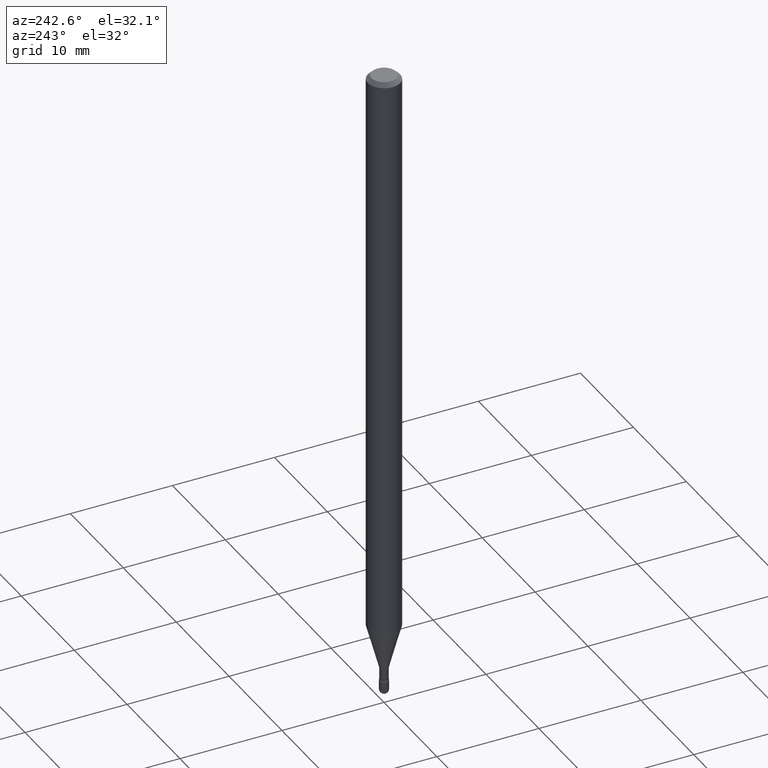
[diagram: clean part render]
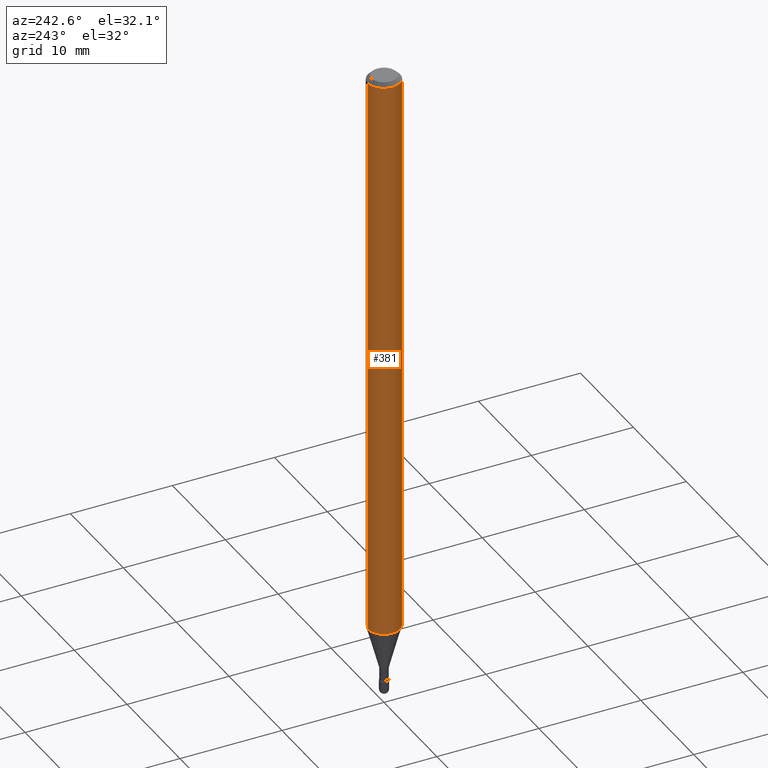
[diagram: same view with one face highlighted and labeled with its STEP entity id]
A machine part, auxiliary view. The second image highlights one B-rep face of the part: STEP entity #381.
In plain terms, the highlighted cylindrical surface (edge-blend (fillet) strip) has radius 1.5875 mm, axis along (-0, 0, 1).
Its self-contained STEP definition (entity closure, byte-faithful):
#3 = DIRECTION ( 'NONE',  ( -2.445476480015523833E-29, 3.491470349481263853E-15, 1.000000000000000000 ) ) ;
#22 = AXIS2_PLACEMENT_3D ( 'NONE', #211, #478, #214 ) ;
#28 = DIRECTION ( 'NONE',  ( -2.445476480015523833E-29, 3.491470349481263853E-15, 1.000000000000000000 ) ) ;
#49 = VERTEX_POINT ( 'NONE', #361 ) ;
#78 = CARTESIAN_POINT ( 'NONE',  ( 5.436634283795472207E-29, -7.762024111851079377E-15, -2.223139060311453363 ) ) ;
#79 = DIRECTION ( 'NONE',  ( -2.445476480015523833E-29, 3.491470349481263853E-15, 1.000000000000000000 ) ) ;
#83 = CARTESIAN_POINT ( 'NONE',  ( 4.440892098500625669E-16, 0.06250000000000000000, 2.598565020486670724E-16 ) ) ;
#101 = CARTESIAN_POINT ( 'NONE',  ( -1.169113584055446105E-44, 1.669184350826100908E-30, 4.780733988912460139E-16 ) ) ;
#108 = CYLINDRICAL_SURFACE ( 'NONE', #276, 0.06250000000000000000 ) ;
#136 = ORIENTED_EDGE ( 'NONE', *, *, #281, .T. ) ;
#140 = CARTESIAN_POINT ( 'NONE',  ( -4.364351673553912750E-16, -0.06250000000000005551, -0.01499999999999986587 ) ) ;
#147 = DIRECTION ( 'NONE',  ( -6.982962677686265922E-15, -1.000000000000000000, 3.491470349481265036E-15 ) ) ;
#158 = FACE_OUTER_BOUND ( 'NONE', #259, .T. ) ;
#187 = VERTEX_POINT ( 'NONE', #461 ) ;
#206 = DIRECTION ( 'NONE',  ( -6.982962677686265922E-15, -1.000000000000000000, 4.370956789862821150E-15 ) ) ;
#207 = VERTEX_POINT ( 'NONE', #140 ) ;
#211 = CARTESIAN_POINT ( 'NONE',  ( 3.668214720023305841E-31, -5.237205524221924868E-17, -0.01500000000000008271 ) ) ;
#214 = DIRECTION ( 'NONE',  ( -6.982962677686265922E-15, -1.000000000000000000, 3.483106191921935554E-15 ) ) ;
#246 = ORIENTED_EDGE ( 'NONE', *, *, #474, .T. ) ;
#249 = AXIS2_PLACEMENT_3D ( 'NONE', #78, #3, #206 ) ;
#259 = EDGE_LOOP ( 'NONE', ( #475, #136, #246, #448 ) ) ;
#262 = DIRECTION ( 'NONE',  ( -2.445476480015523833E-29, 3.491470349481263853E-15, 1.000000000000000000 ) ) ;
#276 = AXIS2_PLACEMENT_3D ( 'NONE', #101, #262, #147 ) ;
#278 = CARTESIAN_POINT ( 'NONE',  ( 4.440892098501173434E-16, 0.06249999999999995143, -0.01500000000000030129 ) ) ;
#281 = EDGE_CURVE ( 'NONE', #49, #187, #314, .T. ) ;
#314 = CIRCLE ( 'NONE', #249, 0.06250000000000000000 ) ;
#329 = CARTESIAN_POINT ( 'NONE',  ( -4.364351673553916201E-16, -0.06250000000000000000, 6.962902957338251033E-16 ) ) ;
#361 = CARTESIAN_POINT ( 'NONE',  ( 4.440892098501167517E-16, 0.06249999999999222150, -2.223139060311453807 ) ) ;
#381 = ADVANCED_FACE ( 'NONE', ( #158 ), #108, .T. ) ;
#448 = ORIENTED_EDGE ( 'NONE', *, *, #486, .F. ) ;
#450 = EDGE_CURVE ( 'NONE', #49, #566, #501, .T. ) ;
#461 = CARTESIAN_POINT ( 'NONE',  ( -4.364351673553374352E-16, -0.06250000000000777156, -2.223139060311453363 ) ) ;
#474 = EDGE_CURVE ( 'NONE', #187, #207, #555, .T. ) ;
#475 = ORIENTED_EDGE ( 'NONE', *, *, #450, .F. ) ;
#478 = DIRECTION ( 'NONE',  ( -2.445476480015523833E-29, 3.491470349481263853E-15, 1.000000000000000000 ) ) ;
#486 = EDGE_CURVE ( 'NONE', #566, #207, #527, .T. ) ;
#501 = LINE ( 'NONE', #83, #541 ) ;
#508 = VECTOR ( 'NONE', #79, 39.37007874015748143 ) ;
#527 = CIRCLE ( 'NONE', #22, 0.06250000000000000000 ) ;
#541 = VECTOR ( 'NONE', #28, 39.37007874015748143 ) ;
#555 = LINE ( 'NONE', #329, #508 ) ;
#566 = VERTEX_POINT ( 'NONE', #278 ) ;